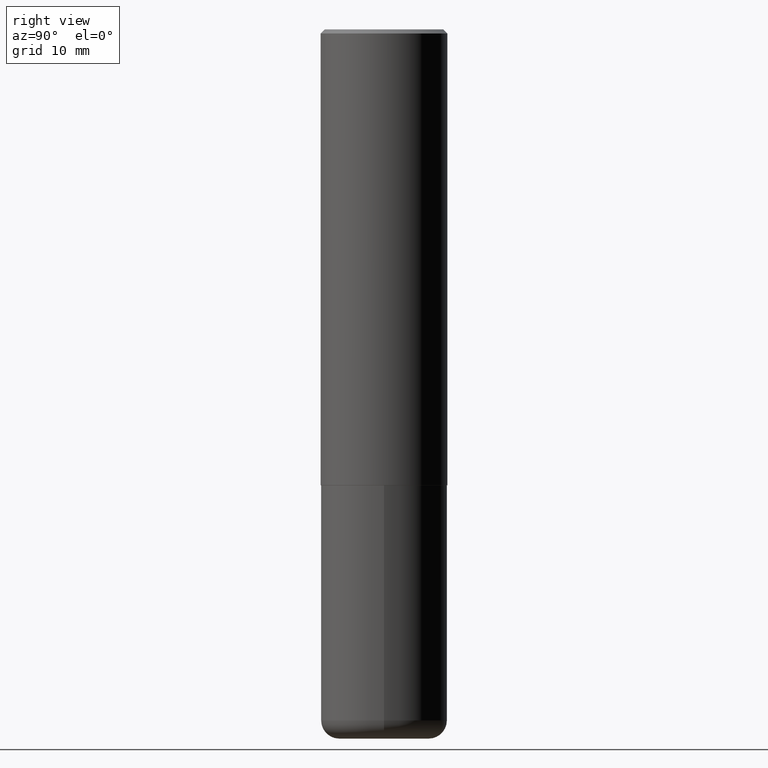
[diagram: clean part render]
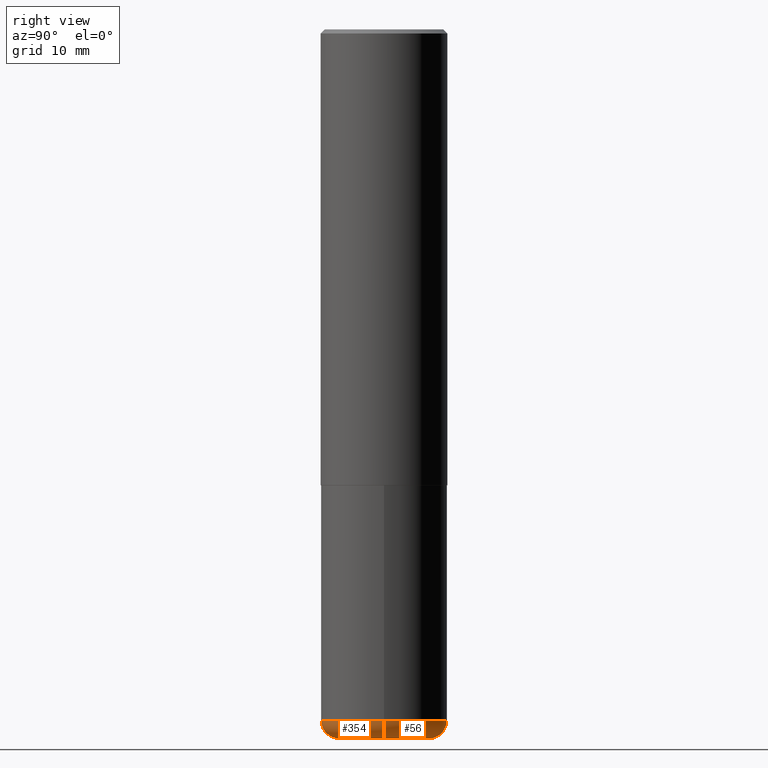
[diagram: same view with one multi-face feature highlighted, each face labeled with its STEP entity id]
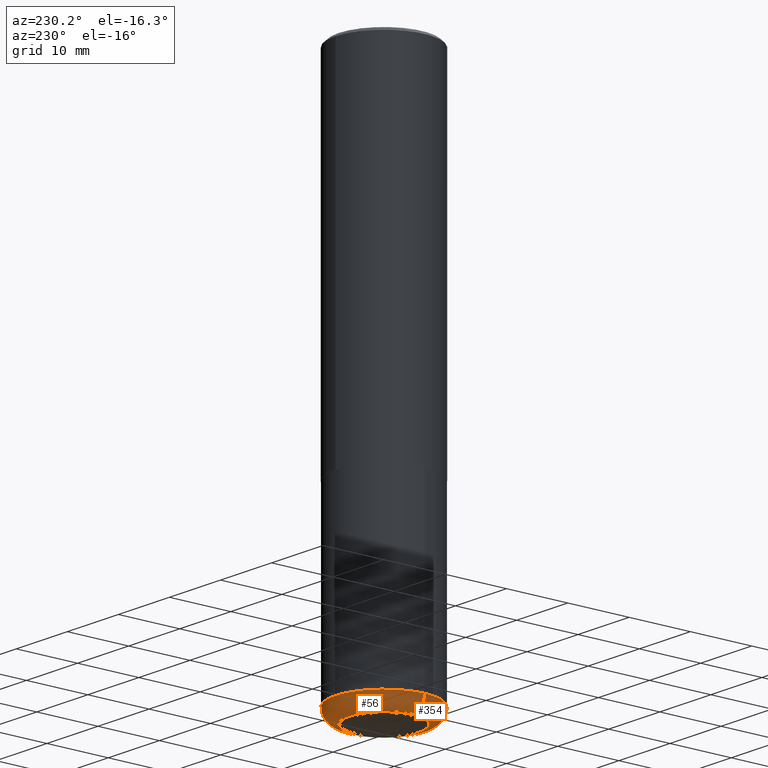
[diagram: same view with one multi-face feature highlighted, each face labeled with its STEP entity id]
A machine part, right view. The highlighted faces form ONE feature: a constant-radius fillet chain: 2 tangent blend faces with common blend radius 2.286 mm. The faces share edges in the B-rep.
A second angle (auxiliary view) of the same feature is appended — it is thin or edge-on in the first view.
Their STEP definitions:
[1] entity #354 (Torus):
#2 = CARTESIAN_POINT ( 'NONE',  ( 8.339048629091315302E-29, -1.190595136545512608E-14, -3.410000000000000142 ) ) ;
#13 = CARTESIAN_POINT ( 'NONE',  ( -0.2225000000000000033, -1.016236620754480236E-14, -3.499999999999999112 ) ) ;
#22 = DIRECTION ( 'NONE',  ( -6.982962677686266711E-15, -1.000000000000000000, 3.491481338843145583E-15 ) ) ;
#23 = EDGE_CURVE ( 'NONE', #90, #392, #182, .T. ) ;
#36 = DIRECTION ( 'NONE',  ( -2.445468806185136597E-29, 3.491481338843145583E-15, 1.000000000000000000 ) ) ;
#50 = CARTESIAN_POINT ( 'NONE',  ( 8.339048629091315302E-29, -1.190595136545512608E-14, -3.410000000000000142 ) ) ;
#57 = DIRECTION ( 'NONE',  ( -2.445468806185136597E-29, 3.491481338843145583E-15, 1.000000000000000000 ) ) ;
#62 = DIRECTION ( 'NONE',  ( -1.000000000000000000, 7.105427357600996337E-15, 0.000000000000000000 ) ) ;
#65 = DIRECTION ( 'NONE',  ( 1.000000000000000000, -6.982962677686269077E-15, 0.000000000000000000 ) ) ;
#85 = EDGE_CURVE ( 'NONE', #90, #120, #158, .T. ) ;
#90 = VERTEX_POINT ( 'NONE', #13 ) ;
#108 = AXIS2_PLACEMENT_3D ( 'NONE', #413, #22, #348 ) ;
#118 = DIRECTION ( 'NONE',  ( 1.000000000000000000, -6.982962677686269077E-15, 0.000000000000000000 ) ) ;
#120 = VERTEX_POINT ( 'NONE', #411 ) ;
#129 = CIRCLE ( 'NONE', #286, 0.3125000000000000000 ) ;
#144 = AXIS2_PLACEMENT_3D ( 'NONE', #2, #246, #213 ) ;
#148 = ORIENTED_EDGE ( 'NONE', *, *, #23, .T. ) ;
#158 = CIRCLE ( 'NONE', #285, 0.08999999999999964972 ) ;
#161 = ORIENTED_EDGE ( 'NONE', *, *, #360, .F. ) ;
#182 = CIRCLE ( 'NONE', #361, 0.2225000000000000033 ) ;
#186 = FACE_OUTER_BOUND ( 'NONE', #292, .T. ) ;
#204 = CARTESIAN_POINT ( 'NONE',  ( 8.559140821647976968E-29, -1.222018468595100619E-14, -3.499999999999999112 ) ) ;
#213 = DIRECTION ( 'NONE',  ( 1.000000000000000000, -6.982962677686264344E-15, 4.883557194083111780E-29 ) ) ;
#246 = DIRECTION ( 'NONE',  ( -2.445468806185136597E-29, 3.491481338843145583E-15, 1.000000000000000000 ) ) ;
#263 = EDGE_CURVE ( 'NONE', #392, #328, #333, .T. ) ;
#284 = ORIENTED_EDGE ( 'NONE', *, *, #85, .F. ) ;
#285 = AXIS2_PLACEMENT_3D ( 'NONE', #335, #330, #62 ) ;
#286 = AXIS2_PLACEMENT_3D ( 'NONE', #50, #57, #118 ) ;
#292 = EDGE_LOOP ( 'NONE', ( #284, #148, #313, #161 ) ) ;
#313 = ORIENTED_EDGE ( 'NONE', *, *, #263, .T. ) ;
#328 = VERTEX_POINT ( 'NONE', #380 ) ;
#330 = DIRECTION ( 'NONE',  ( 7.105427357601001859E-15, 1.000000000000000000, -3.491481338843145583E-15 ) ) ;
#333 = CIRCLE ( 'NONE', #108, 0.08999999999999964972 ) ;
#335 = CARTESIAN_POINT ( 'NONE',  ( -0.2225000000000000033, -1.032499377838890215E-14, -3.410000000000000142 ) ) ;
#348 = DIRECTION ( 'NONE',  ( 1.000000000000000000, -6.982962677686273810E-15, 0.000000000000000000 ) ) ;
#351 = TOROIDAL_SURFACE ( 'NONE', #144, 0.2225000000000000033, 0.08999999999999964972 ) ;
#354 = ADVANCED_FACE ( 'NONE', ( #186 ), #351, .T. ) ;
#360 = EDGE_CURVE ( 'NONE', #120, #328, #129, .T. ) ;
#361 = AXIS2_PLACEMENT_3D ( 'NONE', #204, #36, #65 ) ;
#380 = CARTESIAN_POINT ( 'NONE',  ( 0.3124999999999998890, -1.408812720223208442E-14, -3.410000000000000142 ) ) ;
#383 = CARTESIAN_POINT ( 'NONE',  ( 0.2225000000000000033, -1.377389388173620116E-14, -3.499999999999999112 ) ) ;
#392 = VERTEX_POINT ( 'NONE', #383 ) ;
#411 = CARTESIAN_POINT ( 'NONE',  ( -0.3124999999999998890, -9.685505316204812997E-15, -3.410000000000000142 ) ) ;
#413 = CARTESIAN_POINT ( 'NONE',  ( 0.2225000000000000033, -1.345966056124032105E-14, -3.410000000000000142 ) ) ;
[2] entity #56 (Torus):
#3 = EDGE_LOOP ( 'NONE', ( #358, #321, #197, #6 ) ) ;
#6 = ORIENTED_EDGE ( 'NONE', *, *, #263, .F. ) ;
#13 = CARTESIAN_POINT ( 'NONE',  ( -0.2225000000000000033, -1.016236620754480236E-14, -3.499999999999999112 ) ) ;
#22 = DIRECTION ( 'NONE',  ( -6.982962677686266711E-15, -1.000000000000000000, 3.491481338843145583E-15 ) ) ;
#33 = CARTESIAN_POINT ( 'NONE',  ( 8.559140821647976968E-29, -1.222018468595100619E-14, -3.499999999999999112 ) ) ;
#53 = DIRECTION ( 'NONE',  ( -2.445468806185136597E-29, 3.491481338843145583E-15, 1.000000000000000000 ) ) ;
#56 = ADVANCED_FACE ( 'NONE', ( #126 ), #271, .T. ) ;
#62 = DIRECTION ( 'NONE',  ( -1.000000000000000000, 7.105427357600996337E-15, 0.000000000000000000 ) ) ;
#71 = CARTESIAN_POINT ( 'NONE',  ( 8.339048629091315302E-29, -1.190595136545512608E-14, -3.410000000000000142 ) ) ;
#85 = EDGE_CURVE ( 'NONE', #90, #120, #158, .T. ) ;
#86 = DIRECTION ( 'NONE',  ( 1.000000000000000000, -6.982962677686269077E-15, 0.000000000000000000 ) ) ;
#89 = EDGE_CURVE ( 'NONE', #392, #90, #305, .T. ) ;
#90 = VERTEX_POINT ( 'NONE', #13 ) ;
#94 = DIRECTION ( 'NONE',  ( 1.000000000000000000, -6.982962677686264344E-15, 4.883557194083111780E-29 ) ) ;
#108 = AXIS2_PLACEMENT_3D ( 'NONE', #413, #22, #348 ) ;
#120 = VERTEX_POINT ( 'NONE', #411 ) ;
#126 = FACE_OUTER_BOUND ( 'NONE', #3, .T. ) ;
#151 = AXIS2_PLACEMENT_3D ( 'NONE', #33, #169, #299 ) ;
#158 = CIRCLE ( 'NONE', #285, 0.08999999999999964972 ) ;
#169 = DIRECTION ( 'NONE',  ( -2.445468806185136597E-29, 3.491481338843145583E-15, 1.000000000000000000 ) ) ;
#175 = AXIS2_PLACEMENT_3D ( 'NONE', #71, #260, #94 ) ;
#187 = CIRCLE ( 'NONE', #268, 0.3125000000000000000 ) ;
#197 = ORIENTED_EDGE ( 'NONE', *, *, #300, .F. ) ;
#260 = DIRECTION ( 'NONE',  ( -2.445468806185136597E-29, 3.491481338843145583E-15, 1.000000000000000000 ) ) ;
#263 = EDGE_CURVE ( 'NONE', #392, #328, #333, .T. ) ;
#268 = AXIS2_PLACEMENT_3D ( 'NONE', #317, #53, #86 ) ;
#271 = TOROIDAL_SURFACE ( 'NONE', #175, 0.2225000000000000033, 0.08999999999999964972 ) ;
#285 = AXIS2_PLACEMENT_3D ( 'NONE', #335, #330, #62 ) ;
#299 = DIRECTION ( 'NONE',  ( 1.000000000000000000, -6.982962677686269077E-15, 0.000000000000000000 ) ) ;
#300 = EDGE_CURVE ( 'NONE', #328, #120, #187, .T. ) ;
#305 = CIRCLE ( 'NONE', #151, 0.2225000000000000033 ) ;
#317 = CARTESIAN_POINT ( 'NONE',  ( 8.339048629091315302E-29, -1.190595136545512608E-14, -3.410000000000000142 ) ) ;
#321 = ORIENTED_EDGE ( 'NONE', *, *, #85, .T. ) ;
#328 = VERTEX_POINT ( 'NONE', #380 ) ;
#330 = DIRECTION ( 'NONE',  ( 7.105427357601001859E-15, 1.000000000000000000, -3.491481338843145583E-15 ) ) ;
#333 = CIRCLE ( 'NONE', #108, 0.08999999999999964972 ) ;
#335 = CARTESIAN_POINT ( 'NONE',  ( -0.2225000000000000033, -1.032499377838890215E-14, -3.410000000000000142 ) ) ;
#348 = DIRECTION ( 'NONE',  ( 1.000000000000000000, -6.982962677686273810E-15, 0.000000000000000000 ) ) ;
#358 = ORIENTED_EDGE ( 'NONE', *, *, #89, .T. ) ;
#380 = CARTESIAN_POINT ( 'NONE',  ( 0.3124999999999998890, -1.408812720223208442E-14, -3.410000000000000142 ) ) ;
#383 = CARTESIAN_POINT ( 'NONE',  ( 0.2225000000000000033, -1.377389388173620116E-14, -3.499999999999999112 ) ) ;
#392 = VERTEX_POINT ( 'NONE', #383 ) ;
#411 = CARTESIAN_POINT ( 'NONE',  ( -0.3124999999999998890, -9.685505316204812997E-15, -3.410000000000000142 ) ) ;
#413 = CARTESIAN_POINT ( 'NONE',  ( 0.2225000000000000033, -1.345966056124032105E-14, -3.410000000000000142 ) ) ;